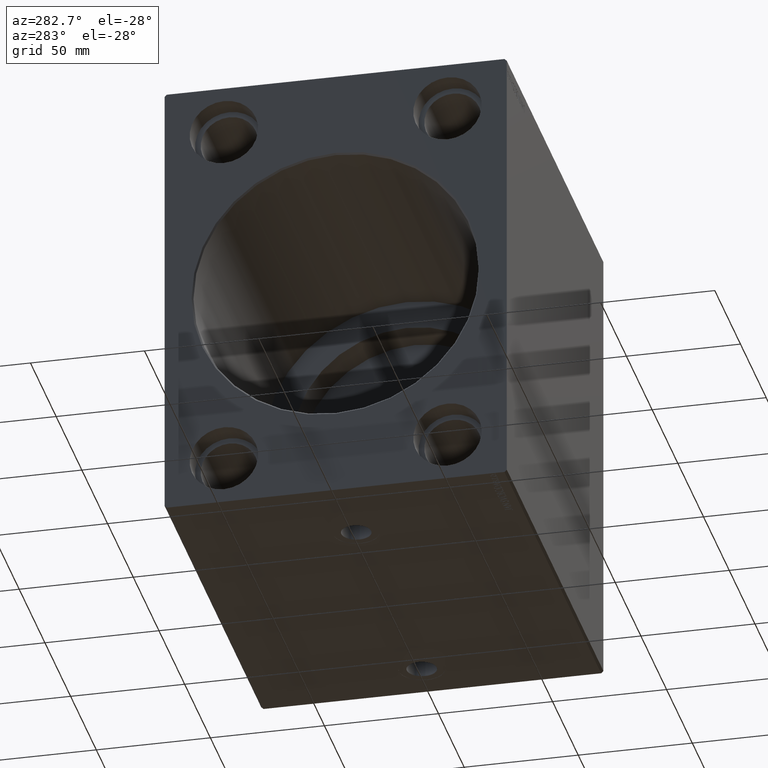
[diagram: clean part render]
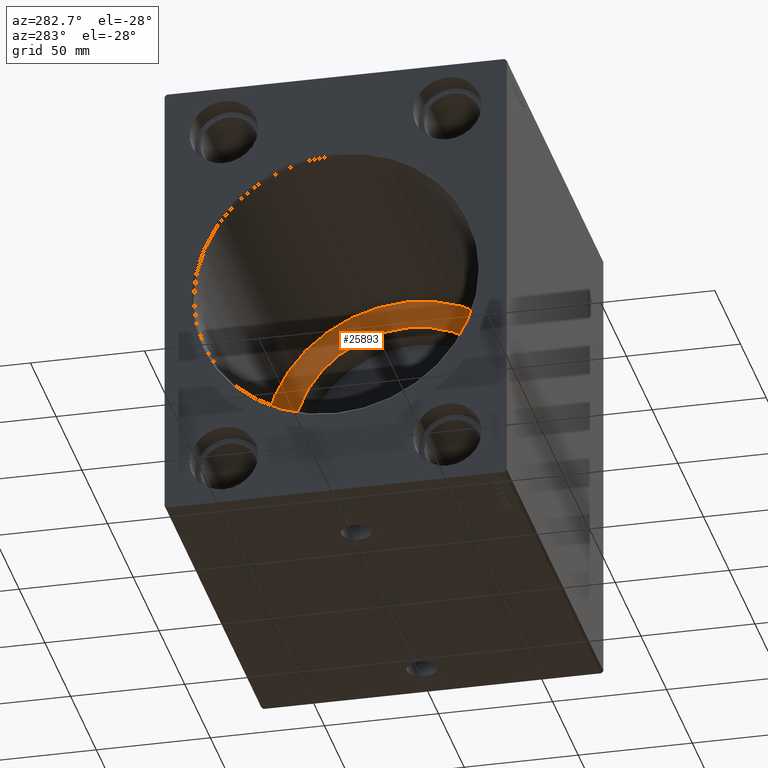
[diagram: same view with one face highlighted and labeled with its STEP entity id]
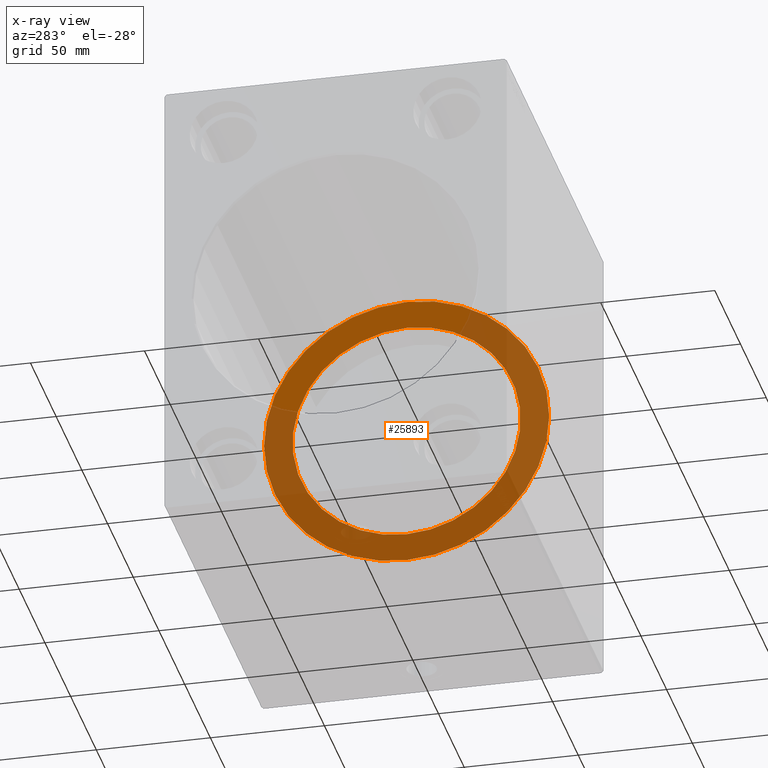
[diagram: x-ray of the same camera — body ghosted, the highlighted face saturated]
A machine part, auxiliary view. The second image highlights one B-rep face of the part: STEP entity #25893.
The next image is the same camera in x-ray: the body ghosted, the highlighted face saturated — about 72% of this face is hidden behind the body in this view.
In plain terms, the highlighted planar face has unit normal (-1, 0, 0).
Its self-contained STEP definition (entity closure, byte-faithful):
#346 = CIRCLE ( 'NONE', #18795, 62.50000000000000000 ) ;
#1054 = VERTEX_POINT ( 'NONE', #26524 ) ;
#2117 = DIRECTION ( 'NONE',  ( -1.000000000000000000, 0.000000000000000000, 0.000000000000000000 ) ) ;
#2922 = EDGE_CURVE ( 'NONE', #6164, #1054, #346, .T. ) ;
#3739 = EDGE_CURVE ( 'NONE', #28885, #32458, #42008, .T. ) ;
#4426 = EDGE_CURVE ( 'NONE', #32458, #28885, #7900, .T. ) ;
#4898 = CARTESIAN_POINT ( 'NONE',  ( 138.0000000000000000, 0.000000000000000000, 0.000000000000000000 ) ) ;
#6164 = VERTEX_POINT ( 'NONE', #39676 ) ;
#6743 = EDGE_LOOP ( 'NONE', ( #18820, #26662 ) ) ;
#6910 = ORIENTED_EDGE ( 'NONE', *, *, #4426, .F. ) ;
#7900 = CIRCLE ( 'NONE', #10614, 50.00000000000000000 ) ;
#7983 = DIRECTION ( 'NONE',  ( 0.000000000000000000, 0.000000000000000000, 1.000000000000000000 ) ) ;
#9717 = DIRECTION ( 'NONE',  ( 0.000000000000000000, 0.000000000000000000, 1.000000000000000000 ) ) ;
#10614 = AXIS2_PLACEMENT_3D ( 'NONE', #4898, #2117, #34844 ) ;
#13357 = CARTESIAN_POINT ( 'NONE',  ( 138.0000000000000000, 0.000000000000000000, 0.000000000000000000 ) ) ;
#13933 = CARTESIAN_POINT ( 'NONE',  ( 138.0000000000000000, 6.123233995736766085E-15, -50.00000000000000000 ) ) ;
#14507 = EDGE_CURVE ( 'NONE', #1054, #6164, #33966, .T. ) ;
#16146 = DIRECTION ( 'NONE',  ( 0.000000000000000000, 0.000000000000000000, 1.000000000000000000 ) ) ;
#18795 = AXIS2_PLACEMENT_3D ( 'NONE', #23807, #20608, #7983 ) ;
#18820 = ORIENTED_EDGE ( 'NONE', *, *, #14507, .T. ) ;
#19341 = FACE_OUTER_BOUND ( 'NONE', #6743, .T. ) ;
#20608 = DIRECTION ( 'NONE',  ( -1.000000000000000000, 0.000000000000000000, 0.000000000000000000 ) ) ;
#21655 = AXIS2_PLACEMENT_3D ( 'NONE', #34790, #35625, #16146 ) ;
#21876 = DIRECTION ( 'NONE',  ( -1.000000000000000000, 0.000000000000000000, 0.000000000000000000 ) ) ;
#22963 = FACE_BOUND ( 'NONE', #25212, .T. ) ;
#23807 = CARTESIAN_POINT ( 'NONE',  ( 138.0000000000000000, 0.000000000000000000, 0.000000000000000000 ) ) ;
#25212 = EDGE_LOOP ( 'NONE', ( #37871, #6910 ) ) ;
#25893 = ADVANCED_FACE ( 'NONE', ( #22963, #19341 ), #32599, .T. ) ;
#26524 = CARTESIAN_POINT ( 'NONE',  ( 138.0000000000000000, 0.000000000000000000, 62.50000000000000000 ) ) ;
#26662 = ORIENTED_EDGE ( 'NONE', *, *, #2922, .T. ) ;
#28885 = VERTEX_POINT ( 'NONE', #37052 ) ;
#32432 = AXIS2_PLACEMENT_3D ( 'NONE', #38358, #21876, #34730 ) ;
#32458 = VERTEX_POINT ( 'NONE', #13933 ) ;
#32599 = PLANE ( 'NONE',  #38221 ) ;
#33966 = CIRCLE ( 'NONE', #21655, 62.50000000000000000 ) ;
#34730 = DIRECTION ( 'NONE',  ( 0.000000000000000000, 0.000000000000000000, 1.000000000000000000 ) ) ;
#34790 = CARTESIAN_POINT ( 'NONE',  ( 138.0000000000000000, 0.000000000000000000, 0.000000000000000000 ) ) ;
#34844 = DIRECTION ( 'NONE',  ( 0.000000000000000000, 0.000000000000000000, 1.000000000000000000 ) ) ;
#35615 = DIRECTION ( 'NONE',  ( -1.000000000000000000, 0.000000000000000000, 0.000000000000000000 ) ) ;
#35625 = DIRECTION ( 'NONE',  ( -1.000000000000000000, 0.000000000000000000, 0.000000000000000000 ) ) ;
#37052 = CARTESIAN_POINT ( 'NONE',  ( 138.0000000000000000, 0.000000000000000000, 50.00000000000000000 ) ) ;
#37871 = ORIENTED_EDGE ( 'NONE', *, *, #3739, .F. ) ;
#38221 = AXIS2_PLACEMENT_3D ( 'NONE', #13357, #35615, #9717 ) ;
#38358 = CARTESIAN_POINT ( 'NONE',  ( 138.0000000000000000, 0.000000000000000000, 0.000000000000000000 ) ) ;
#39676 = CARTESIAN_POINT ( 'NONE',  ( 138.0000000000000000, 7.654042494670957804E-15, -62.50000000000000000 ) ) ;
#42008 = CIRCLE ( 'NONE', #32432, 50.00000000000000000 ) ;